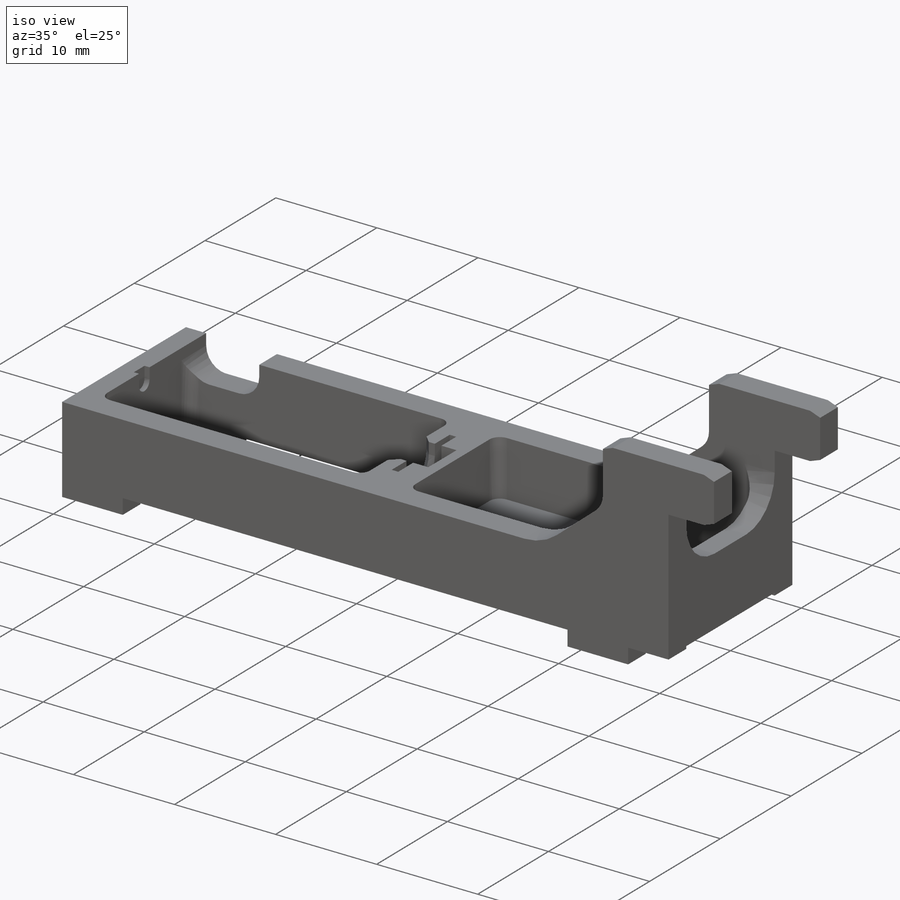
[diagram: iso view]
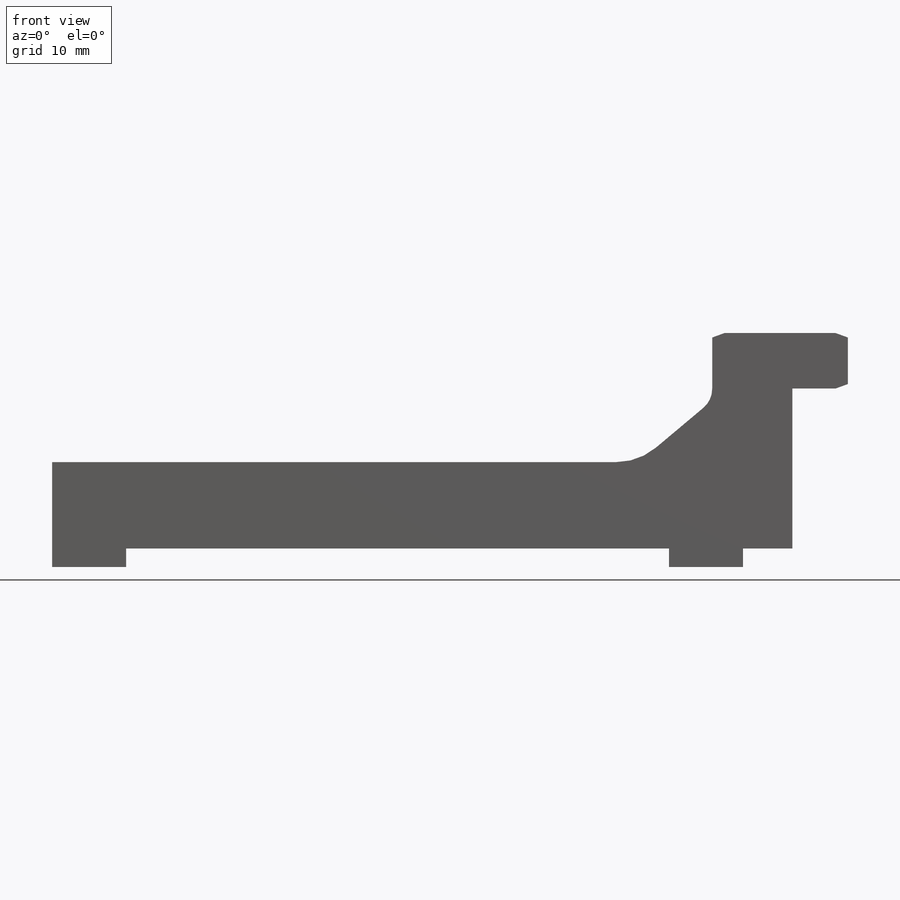
[diagram: front view]
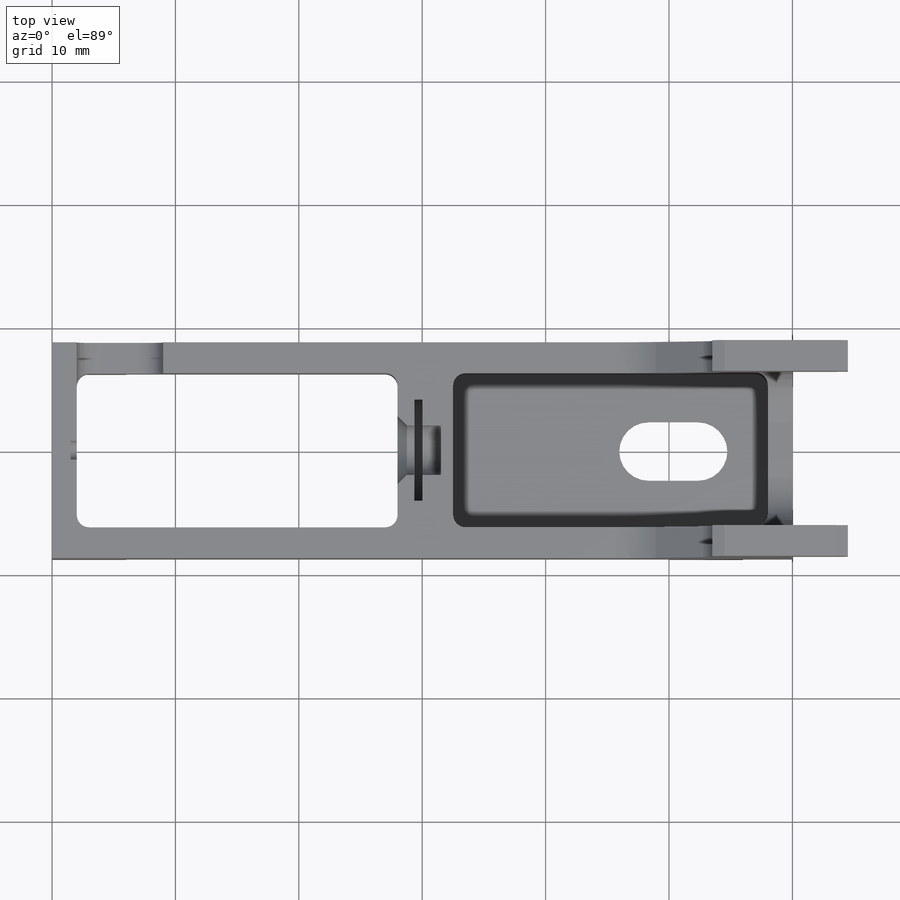
[diagram: top view]
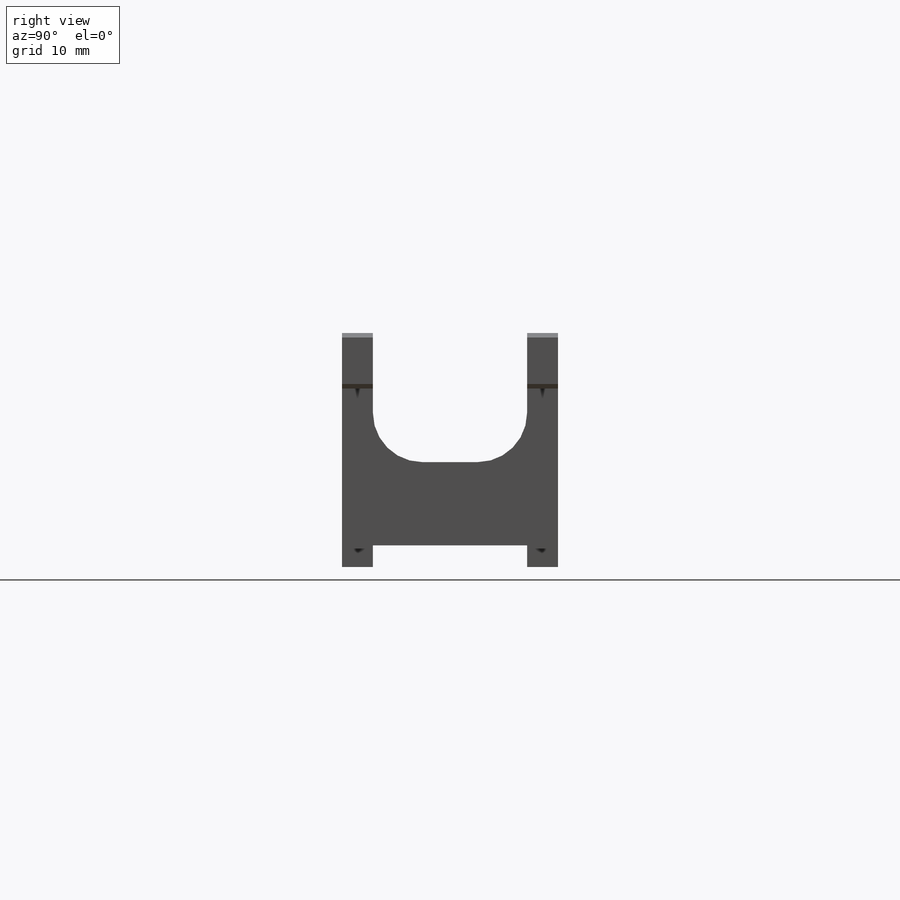
[diagram: right view]
SOLIDWORKS PART (.sldprt)
format: sldprt  version: not decoded by parser v0  size: 486,400 bytes
history: native  units: mm
features: sketch x12, cut_extrude x8, fillet x4, extrude x3, material x1, cut_revolve x1, mirror x1, chamfer x1 (+16 scaffold rows collapsed)
feature tree (47):
  scaffold x16  (default folders/planes/origin — collapsed)
  material  "Material <not specified>"
  sketch  "Sketch1"  dims[D1=7.0mm D2=60.0mm]
  extrude  "Boss-Extrude1"  Depth=17.5mm
  sketch  "Sketch2"  dims[D1=26.0mm D2=2.0mm D3=12.5mm]
  cut_extrude  "Cut-Extrude1"  [1 undecoded]
  sketch  "Sketch3"  dims[D1=5.9mm D2=0.75mm D3=0.5mm D4=2.0mm D5=27.85mm D6=0.65mm D7=1.5mm D8=4.1mm]
  cut_revolve  "Cut-Revolve5"  Angle=360deg
  sketch  "Sketch4"
  cut_extrude  "Cut-Extrude2"  [1 undecoded]
  sketch  "Sketch5"
  cut_extrude  "Cut-Extrude4"  [1 undecoded]
  sketch  "Sketch6"
  cut_extrude  "Cut-Extrude5"  [1 undecoded]
  sketch  "Sketch7"  dims[c1.D1=12.7mm c1.D2=4.7625mm c1.D3=~5.818895mm c2.D3=20.0deg c2.D4=4.5mm c2.D5=4.5mm c2.D6=1.0mm c2.D7=12.0mm c2.D8=~6.367373mm c3.D8=40.0deg c3.D9=11.0mm c3.D4=4.5mm]
  extrude  "Boss-Extrude2"  Depth=2.5mm
  sketch  "Sketch9"  dims[D1=2.0mm D2=6.0mm D3=50.0mm]
  extrude  "Boss-Extrude4"  Depth=1.5mm
  mirror  "Mirror1"
  sketch  "Sketch10"  dims[D1=2.0mm D2=1.0mm]
  cut_extrude  "Cut-Extrude6"  Depth=1.5mm
  sketch  "Sketch11"  dims[D1=4.7625mm D2=4.0mm D3=19.0mm]
  cut_extrude  "Cut-Extrude7"  [1 undecoded]
  sketch  "Sketch12"
  cut_extrude  "Cut-Extrude8"  Depth=0.25mm
  fillet  "Fillet1"  Radius=4mm
  fillet  "Fillet2"  Radius=5mm
  fillet  "Fillet3"  Radius=1mm
  sketch  "Sketch13"  dims[c1.D2=2.0mm c1.D1=4.0mm c2.D2=3.0mm c2.D1=3.0mm]
  cut_extrude  "Cut-Extrude9"  Depth=10mm
  fillet  "Fillet4"  Radius=2mm
  chamfer  "Chamfer1"  Distance=0.75mm Angle=45deg
decode coverage: 20 of 30 modeling features carry decoded parameters
note: ~ marks probable driven/reference dimensions
note: 5 parameter values undecoded
summary: no parameter record found for 5 features
note: suppression state not decoded; provenance and decode notes live in map.json
